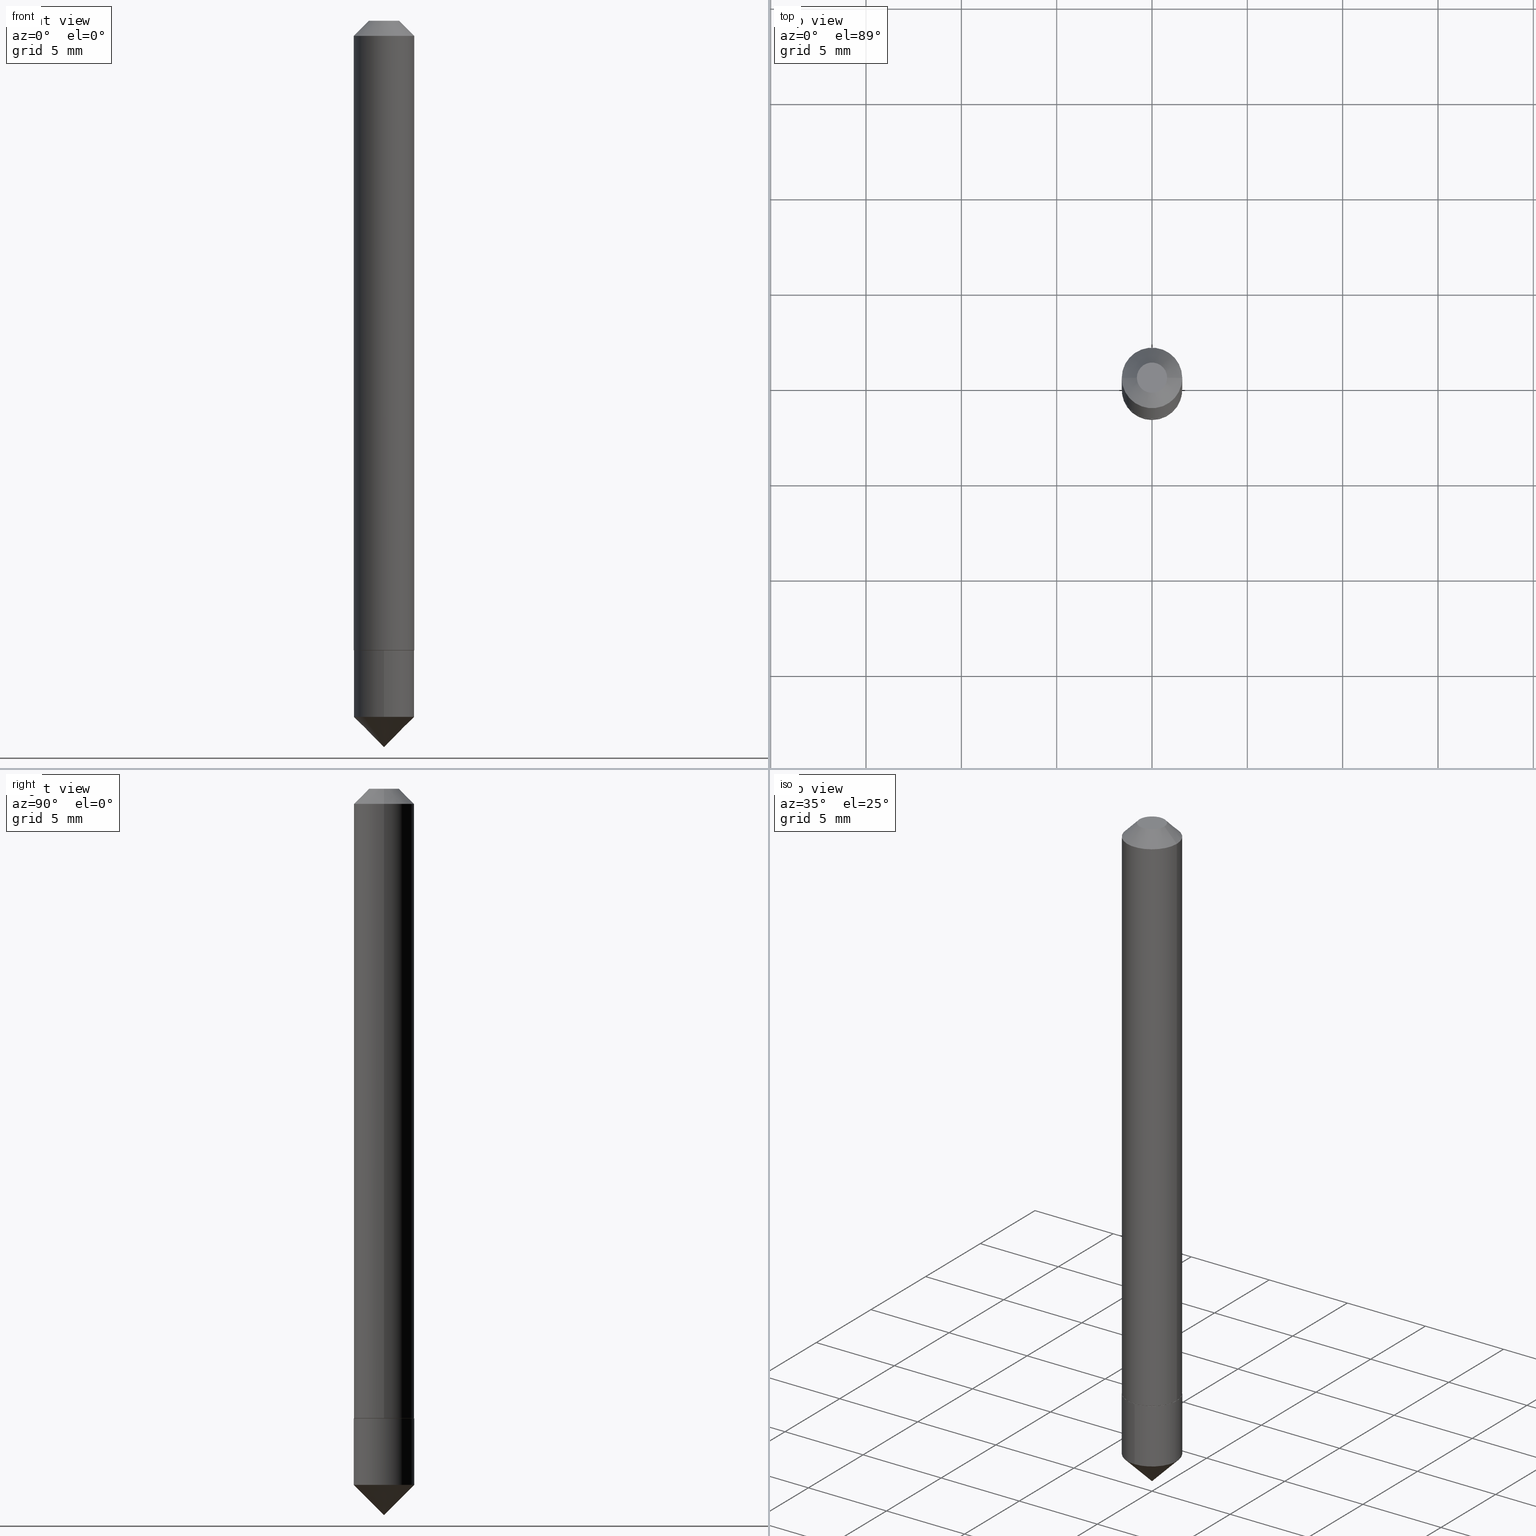
[diagram: canonical four-view strip — front | top / right | iso, engineering-drawing reading convention]
A machine part, canonical four-view strip (front | top / right | iso — engineering-drawing reading convention). The complete STEP part file that produces these views, byte-faithful:
ISO-10303-21;
HEADER;
FILE_DESCRIPTION (( 'STEP AP203' ),
    '1' );
FILE_NAME ('7023.STEP',
    '2024-04-23T14:54:24',
    ( '' ),
    ( '' ),
    'SwSTEP 2.0',
    'SolidWorks 2023',
    '' );
FILE_SCHEMA (( 'CONFIG_CONTROL_DESIGN' ));
ENDSEC;

DATA;
#1 = PERSON_AND_ORGANIZATION ( #212, #213 ) ;
#2 = VERTEX_POINT ( 'NONE', #248 ) ;
#3 = EDGE_CURVE ( 'NONE', #390, #132, #250, .T. ) ;
#4 = EDGE_LOOP ( 'NONE', ( #123, #31, #148, #210 ) ) ;
#5 = DATE_AND_TIME ( #197, #276 ) ;
#6 = CYLINDRICAL_SURFACE ( 'NONE', #120, 0.06250000000000012490 ) ;
#7 = VERTEX_POINT ( 'NONE', #96 ) ;
#8 = EDGE_CURVE ( 'NONE', #103, #370, #13, .T. ) ;
#9 = DIRECTION ( 'NONE',  ( -2.445468806185136597E-29, 3.491481338843145583E-15, 1.000000000000000000 ) ) ;
#10 = ORIENTED_EDGE ( 'NONE', *, *, #205, .F. ) ;
#11 = APPLICATION_CONTEXT ( 'configuration controlled 3d designs of mechanical parts and assemblies' ) ;
#12 = CARTESIAN_POINT ( 'NONE',  ( -0.06200000000000031875, -4.095740017150713065E-15, -1.299999999999999822 ) ) ;
#13 = CIRCLE ( 'NONE', #65, 0.06250000000000001388 ) ;
#14 = DIRECTION ( 'NONE',  ( 1.000000000000000000, -6.982962677686269866E-15, 0.000000000000000000 ) ) ;
#15 = CARTESIAN_POINT ( 'NONE',  ( 3.619678596598256141E-29, -5.306712015471122952E-15, -1.499999999999999778 ) ) ;
#16 = SECURITY_CLASSIFICATION_LEVEL ( 'unclassified' ) ;
#17 = CARTESIAN_POINT ( 'NONE',  ( 0.06250000000000022204, -4.973615167182060094E-15, -1.299499999999999877 ) ) ;
#18 = CIRCLE ( 'NONE', #146, 0.06250000000000002776 ) ;
#19 = EDGE_CURVE ( 'NONE', #187, #2, #368, .T. ) ;
#20 = CALENDAR_DATE ( 2024, 23, 4 ) ;
#21 = CARTESIAN_POINT ( 'NONE',  ( 0.06250000000000001388, -5.378899166995698233E-16, -0.03125000000000020817 ) ) ;
#22 = EDGE_CURVE ( 'NONE', #38, #150, #94, .T. ) ;
#23 = LINE ( 'NONE', #200, #297 ) ;
#24 = DIRECTION ( 'NONE',  ( -2.445468806185136597E-29, 3.491481338843145583E-15, 1.000000000000000000 ) ) ;
#25 = CIRCLE ( 'NONE', #244, 0.06200000000000031875 ) ;
#26 = LOCAL_TIME ( 10, 54, 24.00000000000000000, #51 ) ;
#27 = DIRECTION ( 'NONE',  ( -6.982962677686266711E-15, -1.000000000000000000, 3.552713678800484363E-15 ) ) ;
#28 = LENGTH_MEASURE_WITH_UNIT ( LENGTH_MEASURE( 0.02539999999999999897 ), #134 );
#29 = ORIENTED_EDGE ( 'NONE', *, *, #219, .T. ) ;
#30 = APPROVAL_DATE_TIME ( #46, #384 ) ;
#31 = ORIENTED_EDGE ( 'NONE', *, *, #22, .T. ) ;
#32 = AXIS2_PLACEMENT_3D ( 'NONE', #147, #361, #296 ) ;
#33 = ORIENTED_EDGE ( 'NONE', *, *, #359, .T. ) ;
#34 = DIRECTION ( 'NONE',  ( -0.7071067811865454633, 2.468850131082235367E-15, -0.7071067811865495711 ) ) ;
#35 = FACE_OUTER_BOUND ( 'NONE', #36, .T. ) ;
#36 = EDGE_LOOP ( 'NONE', ( #192, #161, #57 ) ) ;
#37 = ADVANCED_FACE ( 'NONE', ( #127 ), #369, .T. ) ;
#38 = VERTEX_POINT ( 'NONE', #12 ) ;
#39 = APPROVAL_DATE_TIME ( #5, #376 ) ;
#40 = CARTESIAN_POINT ( 'NONE',  ( 3.619678596598256141E-29, -5.306712015471122952E-15, -1.499999999999999778 ) ) ;
#41 = DIRECTION ( 'NONE',  ( 5.024295867788073434E-15, 0.7071067811865516806, 0.7071067811865433539 ) ) ;
#42 = EDGE_CURVE ( 'NONE', #187, #102, #218, .T. ) ;
#43 = ORIENTED_EDGE ( 'NONE', *, *, #257, .F. ) ;
#44 = CONICAL_SURFACE ( 'NONE', #286, 0.06250000000000022204, 0.7853981633974482790 ) ;
#45 = DIRECTION ( 'NONE',  ( 1.000000000000000000, -6.982962677686269866E-15, 0.000000000000000000 ) ) ;
#46 = DATE_AND_TIME ( #20, #66 ) ;
#47 = CARTESIAN_POINT ( 'NONE',  ( 0.06200000000000031875, -4.971869426512638590E-15, -1.299999999999999822 ) ) ;
#48 = APPLICATION_PROTOCOL_DEFINITION ( 'international standard', 'config_control_design', 1994, #280 ) ;
#49 = DIRECTION ( 'NONE',  ( -2.445468806185136877E-29, 3.491481338843145188E-15, 1.000000000000000000 ) ) ;
#50 = AXIS2_PLACEMENT_3D ( 'NONE', #374, #264, #202 ) ;
#51 = COORDINATED_UNIVERSAL_TIME_OFFSET ( 5, 0, .BEHIND. ) ;
#52 = DIRECTION ( 'NONE',  ( -2.445468806185136877E-29, 3.491481338843145188E-15, 1.000000000000000000 ) ) ;
#53 = DIRECTION ( 'NONE',  ( 1.000000000000000000, -6.982962677686265922E-15, 4.876176775795935232E-29 ) ) ;
#54 = DIRECTION ( 'NONE',  ( 1.000000000000000000, -6.982962677686265922E-15, 4.876176775795935793E-29 ) ) ;
#55 = DESIGN_CONTEXT ( 'detailed design', #11, 'design' ) ;
#56 = PRODUCT_DEFINITION ( 'UNKNOWN', '', #299, #55 ) ;
#57 = ORIENTED_EDGE ( 'NONE', *, *, #62, .F. ) ;
#58 = CONICAL_SURFACE ( 'NONE', #207, 0.06250000000000001388, 0.7853981633974453924 ) ;
#59 = APPROVAL_PERSON_ORGANIZATION ( #116, #376, #79 ) ;
#60 = PERSON_AND_ORGANIZATION ( #212, #213 ) ;
#61 = PERSON_AND_ORGANIZATION ( #212, #213 ) ;
#62 = EDGE_CURVE ( 'NONE', #2, #102, #364, .T. ) ;
#63 = ORIENTED_EDGE ( 'NONE', *, *, #162, .T. ) ;
#64 = FACE_OUTER_BOUND ( 'NONE', #165, .T. ) ;
#65 = AXIS2_PLACEMENT_3D ( 'NONE', #189, #160, #157 ) ;
#66 = LOCAL_TIME ( 10, 54, 24.00000000000000000, #381 ) ;
#67 = ORIENTED_EDGE ( 'NONE', *, *, #205, .T. ) ;
#68 = CARTESIAN_POINT ( 'NONE',  ( 7.642090019328602662E-31, -1.091087918388490267E-16, -0.03125000000000020817 ) ) ;
#69 = CARTESIAN_POINT ( 'NONE',  ( 7.642090019328602662E-31, -1.091087918388490267E-16, -0.03125000000000020817 ) ) ;
#70 = DIRECTION ( 'NONE',  ( -6.982962677686265922E-15, -1.000000000000000000, 4.370956789862820361E-15 ) ) ;
#71 = ORIENTED_EDGE ( 'NONE', *, *, #344, .T. ) ;
#72 = EDGE_LOOP ( 'NONE', ( #336, #317, #246, #283 ) ) ;
#73 = ORIENTED_EDGE ( 'NONE', *, *, #303, .T. ) ;
#74 = EDGE_CURVE ( 'NONE', #150, #38, #25, .T. ) ;
#75 = ORIENTED_EDGE ( 'NONE', *, *, #3, .F. ) ;
#76 = DIRECTION ( 'NONE',  ( -6.982962677686265922E-15, -1.000000000000000000, 4.370956789862820361E-15 ) ) ;
#77 = AXIS2_PLACEMENT_3D ( 'NONE', #69, #217, #243 ) ;
#78 = APPROVAL_PERSON_ORGANIZATION ( #61, #305, #334 ) ;
#79 = APPROVAL_ROLE ( '' ) ;
#80 = DIMENSIONAL_EXPONENTS ( 1.000000000000000000, 0.000000000000000000, 0.000000000000000000, 0.000000000000000000, 0.000000000000000000, 0.000000000000000000, 0.000000000000000000 ) ;
#81 = DIRECTION ( 'NONE',  ( -4.937700262164559086E-15, -0.7071067811865465735, 0.7071067811865484609 ) ) ;
#82 = DIRECTION ( 'NONE',  ( 1.000000000000000000, 0.000000000000000000, 0.000000000000000000 ) ) ;
#83 = CARTESIAN_POINT ( 'NONE',  ( 3.179109448040676791E-29, -4.538925740496088350E-15, -1.299999999999999822 ) ) ;
#84 = PERSON_AND_ORGANIZATION ( #212, #213 ) ;
#85 = DIRECTION ( 'NONE',  ( -6.982962677686265922E-15, -1.000000000000000000, 4.370956789862819572E-15 ) ) ;
#86 = DIRECTION ( 'NONE',  ( 1.000000000000000000, -6.982962677686267499E-15, 4.877000552086102004E-29 ) ) ;
#87 = EDGE_CURVE ( 'NONE', #132, #390, #220, .T. ) ;
#88 = CARTESIAN_POINT ( 'NONE',  ( 0.03125000000000000694, -3.761402395649651909E-16, -3.091620844447285598E-17 ) ) ;
#89 = DATE_AND_TIME ( #110, #26 ) ;
#90 = ORIENTED_EDGE ( 'NONE', *, *, #328, .F. ) ;
#91 = CC_DESIGN_PERSON_AND_ORGANIZATION_ASSIGNMENT ( #272, #173, ( #299 ) ) ;
#92 = CARTESIAN_POINT ( 'NONE',  ( 0.000000000000000000, 0.000000000000000000, 0.000000000000000000 ) ) ;
#93 = VECTOR ( 'NONE', #34, 39.37007874015748143 ) ;
#94 = CIRCLE ( 'NONE', #190, 0.06200000000000031875 ) ;
#95 = CONICAL_SURFACE ( 'NONE', #292, 39.37007874015766618, 0.7853981633974506105 ) ;
#96 = CARTESIAN_POINT ( 'NONE',  ( -0.06250000000000022204, -4.093090789976602653E-15, -1.299499999999999877 ) ) ;
#97 = DIRECTION ( 'NONE',  ( 6.982962677686265922E-15, 1.000000000000000000, -3.537808010314082757E-15 ) ) ;
#98 = ORIENTED_EDGE ( 'NONE', *, *, #315, .T. ) ;
#99 = DIRECTION ( 'NONE',  ( -6.982962677686265922E-15, -1.000000000000000000, 4.370956789862820361E-15 ) ) ;
#100 = SHAPE_DEFINITION_REPRESENTATION ( #158, #301 ) ;
#101 = VECTOR ( 'NONE', #49, 39.37007874015748143 ) ;
#102 = VERTEX_POINT ( 'NONE', #198 ) ;
#103 = VERTEX_POINT ( 'NONE', #327 ) ;
#104 = CYLINDRICAL_SURFACE ( 'NONE', #258, 0.06250000000000012490 ) ;
#105 = EDGE_CURVE ( 'NONE', #235, #390, #23, .T. ) ;
#106 = DATE_TIME_ROLE ( 'classification_date' ) ;
#107 = CARTESIAN_POINT ( 'NONE',  ( 3.177886713637585111E-29, -4.537179999826666847E-15, -1.299499999999999877 ) ) ;
#108 = AXIS2_PLACEMENT_3D ( 'NONE', #227, #290, #86 ) ;
#109 = LINE ( 'NONE', #171, #225 ) ;
#110 = CALENDAR_DATE ( 2024, 23, 4 ) ;
#111 = DIRECTION ( 'NONE',  ( 2.438088387897960049E-29, -3.491481338843145188E-15, -1.000000000000000000 ) ) ;
#112 = CYLINDRICAL_SURFACE ( 'NONE', #237, 0.06250000000000001388 ) ;
#113 = CONICAL_SURFACE ( 'NONE', #181, 0.06250000000000001388, 0.7853981633974453924 ) ;
#114 = LINE ( 'NONE', #214, #131 ) ;
#115 = DIRECTION ( 'NONE',  ( -2.413119064398837894E-29, 3.537808010314082757E-15, 1.000000000000000000 ) ) ;
#116 = PERSON_AND_ORGANIZATION ( #212, #213 ) ;
#117 = ADVANCED_FACE ( 'NONE', ( #133 ), #104, .T. ) ;
#118 = EDGE_LOOP ( 'NONE', ( #331, #306 ) ) ;
#119 = AXIS2_PLACEMENT_3D ( 'NONE', #107, #224, #45 ) ;
#120 = AXIS2_PLACEMENT_3D ( 'NONE', #92, #387, #268 ) ;
#121 = EDGE_LOOP ( 'NONE', ( #152, #281 ) ) ;
#122 = DIRECTION ( 'NONE',  ( 1.000000000000000000, -6.982962677686269866E-15, 0.000000000000000000 ) ) ;
#123 = ORIENTED_EDGE ( 'NONE', *, *, #162, .F. ) ;
#124 = DIRECTION ( 'NONE',  ( 1.000000000000000000, -6.982962677686267499E-15, 4.877000552086102004E-29 ) ) ;
#125 = LOCAL_TIME ( 10, 54, 24.00000000000000000, #255 ) ;
#126 = ORIENTED_EDGE ( 'NONE', *, *, #74, .T. ) ;
#127 = FACE_OUTER_BOUND ( 'NONE', #241, .T. ) ;
#128 = ADVANCED_FACE ( 'NONE', ( #322 ), #58, .T. ) ;
#129 = ORIENTED_EDGE ( 'NONE', *, *, #87, .F. ) ;
#130 = MANIFOLD_SOLID_BREP ( 'Body-Move/Copy2[1]', #259 ) ;
#131 = VECTOR ( 'NONE', #234, 39.37007874015748143 ) ;
#132 = VERTEX_POINT ( 'NONE', #320 ) ;
#133 = FACE_OUTER_BOUND ( 'NONE', #347, .T. ) ;
#134 =( LENGTH_UNIT ( ) NAMED_UNIT ( * ) SI_UNIT ( $, .METRE. ) );
#135 = DIRECTION ( 'NONE',  ( 1.000000000000000000, -6.982962677686265133E-15, 0.000000000000000000 ) ) ;
#136 = CARTESIAN_POINT ( 'NONE',  ( 0.000000000000000000, 0.000000000000000000, 0.000000000000000000 ) ) ;
#137 = PRODUCT_RELATED_PRODUCT_CATEGORY ( 'detail', '', ( #335 ) ) ;
#138 = LINE ( 'NONE', #21, #269 ) ;
#139 = CC_DESIGN_SECURITY_CLASSIFICATION ( #378, ( #299 ) ) ;
#140 = PERSON_AND_ORGANIZATION_ROLE ( 'creator' ) ;
#141 = DIRECTION ( 'NONE',  ( -2.413119064398837894E-29, 3.537808010314082757E-15, 1.000000000000000000 ) ) ;
#142 = CARTESIAN_POINT ( 'NONE',  ( 0.000000000000000000, 0.000000000000000000, 0.000000000000000000 ) ) ;
#143 = AXIS2_PLACEMENT_3D ( 'NONE', #309, #211, #54 ) ;
#144 = FACE_OUTER_BOUND ( 'NONE', #316, .T. ) ;
#145 = AXIS2_PLACEMENT_3D ( 'NONE', #284, #314, #99 ) ;
#146 = AXIS2_PLACEMENT_3D ( 'NONE', #242, #240, #245 ) ;
#147 = CARTESIAN_POINT ( 'NONE',  ( -9.134295431383695749E-28, 1.340372925910664003E-13, 37.87007874015748143 ) ) ;
#148 = ORIENTED_EDGE ( 'NONE', *, *, #328, .T. ) ;
#149 = DATE_AND_TIME ( #321, #350 ) ;
#150 = VERTEX_POINT ( 'NONE', #47 ) ;
#151 = APPROVAL_STATUS ( 'not_yet_approved' ) ;
#152 = ORIENTED_EDGE ( 'NONE', *, *, #8, .T. ) ;
#153 = CIRCLE ( 'NONE', #372, 0.06250000000000001388 ) ;
#154 = DIRECTION ( 'NONE',  ( 2.445468806185136597E-29, -3.491481338843145583E-15, -1.000000000000000000 ) ) ;
#155 = ADVANCED_FACE ( 'NONE', ( #254 ), #291, .T. ) ;
#156 = FACE_OUTER_BOUND ( 'NONE', #72, .T. ) ;
#157 = DIRECTION ( 'NONE',  ( -6.982962677686265922E-15, -1.000000000000000000, 4.370956789862820361E-15 ) ) ;
#158 = PRODUCT_DEFINITION_SHAPE ( 'NONE', 'NONE',  #56 ) ;
#159 = AXIS2_PLACEMENT_3D ( 'NONE', #330, #270, #176 ) ;
#160 = DIRECTION ( 'NONE',  ( -2.413119064398837894E-29, 3.537808010314082757E-15, 1.000000000000000000 ) ) ;
#161 = ORIENTED_EDGE ( 'NONE', *, *, #42, .T. ) ;
#162 = EDGE_CURVE ( 'NONE', #38, #7, #109, .T. ) ;
#163 = ORIENTED_EDGE ( 'NONE', *, *, #8, .F. ) ;
#164 = VECTOR ( 'NONE', #337, 39.37007874015748854 ) ;
#165 = EDGE_LOOP ( 'NONE', ( #73, #67, #75, #342 ) ) ;
#166 = CARTESIAN_POINT ( 'NONE',  ( 3.179109448040676791E-29, -4.538925740496088350E-15, -1.299999999999999822 ) ) ;
#167 = ADVANCED_FACE ( 'NONE', ( #230 ), #232, .F. ) ;
#168 = APPROVAL_STATUS ( 'not_yet_approved' ) ;
#169 = DIRECTION ( 'NONE',  ( -0.7071067811865474617, 7.493145998870352582E-15, 0.7071067811865474617 ) ) ;
#170 = MECHANICAL_CONTEXT ( 'NONE', #280, 'mechanical' ) ;
#171 = CARTESIAN_POINT ( 'NONE',  ( -0.06250000000000022204, -4.093090789976602653E-15, -1.299499999999999877 ) ) ;
#172 = AXIS2_PLACEMENT_3D ( 'NONE', #186, #358, #97 ) ;
#173 = PERSON_AND_ORGANIZATION_ROLE ( 'creator' ) ;
#174 = DIRECTION ( 'NONE',  ( 2.445468806185136597E-29, -3.491481338843145583E-15, -1.000000000000000000 ) ) ;
#175 = CARTESIAN_POINT ( 'NONE',  ( -0.06250000000000001388, 3.273263755165427167E-16, -0.03125000000000020817 ) ) ;
#176 = DIRECTION ( 'NONE',  ( 1.000000000000000000, -6.982962677686269866E-15, 0.000000000000000000 ) ) ;
#177 = ORIENTED_EDGE ( 'NONE', *, *, #332, .T. ) ;
#178 = VECTOR ( 'NONE', #329, 39.37007874015748143 ) ;
#179 = PERSON_AND_ORGANIZATION ( #212, #213 ) ;
#180 = ORIENTED_EDGE ( 'NONE', *, *, #359, .F. ) ;
#181 = AXIS2_PLACEMENT_3D ( 'NONE', #68, #154, #182 ) ;
#182 = DIRECTION ( 'NONE',  ( -1.000000000000000000, 6.982962677686265922E-15, 0.000000000000000000 ) ) ;
#183 = ADVANCED_FACE ( 'NONE', ( #266 ), #112, .T. ) ;
#184 = CC_DESIGN_PERSON_AND_ORGANIZATION_ASSIGNMENT ( #289, #379, ( #378 ) ) ;
#185 = ORIENTED_EDGE ( 'NONE', *, *, #19, .T. ) ;
#186 = CARTESIAN_POINT ( 'NONE',  ( 3.179109448040676791E-29, -4.538925740496088350E-15, -1.299999999999999822 ) ) ;
#187 = VERTEX_POINT ( 'NONE', #15 ) ;
#188 = LINE ( 'NONE', #311, #164 ) ;
#189 = CARTESIAN_POINT ( 'NONE',  ( 3.179109448040676791E-29, -4.538925740496088350E-15, -1.299999999999999822 ) ) ;
#190 = AXIS2_PLACEMENT_3D ( 'NONE', #345, #9, #221 ) ;
#191 = ORIENTED_EDGE ( 'NONE', *, *, #263, .T. ) ;
#192 = ORIENTED_EDGE ( 'NONE', *, *, #19, .F. ) ;
#193 = ORIENTED_EDGE ( 'NONE', *, *, #105, .T. ) ;
#194 = AXIS2_PLACEMENT_3D ( 'NONE', #385, #383, #85 ) ;
#195 = CC_DESIGN_APPROVAL ( #384, ( #56 ) ) ;
#196 = CARTESIAN_POINT ( 'NONE',  ( -0.06250000000000012490, 4.440892098500635036E-16, -3.074334431409321719E-30 ) ) ;
#197 = CALENDAR_DATE ( 2024, 23, 4 ) ;
#198 = CARTESIAN_POINT ( 'NONE',  ( -4.364351673553566637E-16, -0.06250000000000505151, -1.437500000000000000 ) ) ;
#199 = UNCERTAINTY_MEASURE_WITH_UNIT (LENGTH_MEASURE( 1.000000000000000082E-05 ), #228, 'distance_accuracy_value', 'NONE');
#200 = CARTESIAN_POINT ( 'NONE',  ( 0.06250000000000012490, -4.364351673553925076E-16, 3.047610484872465476E-30 ) ) ;
#201 = APPROVAL_DATE_TIME ( #389, #305 ) ;
#202 = DIRECTION ( 'NONE',  ( 1.000000000000000000, -6.982962677686265922E-15, 0.000000000000000000 ) ) ;
#203 = AXIS2_PLACEMENT_3D ( 'NONE', #367, #279, #122 ) ;
#204 = DIRECTION ( 'NONE',  ( 0.7071067811865454633, -7.319954787623248157E-15, -0.7071067811865495711 ) ) ;
#205 = EDGE_CURVE ( 'NONE', #7, #132, #357, .T. ) ;
#206 = PLANE ( 'NONE',  #143 ) ;
#207 = AXIS2_PLACEMENT_3D ( 'NONE', #256, #174, #353 ) ;
#208 = AXIS2_PLACEMENT_3D ( 'NONE', #136, #323, #82 ) ;
#209 =( NAMED_UNIT ( * ) SI_UNIT ( $, .STERADIAN. ) SOLID_ANGLE_UNIT ( ) );
#210 = ORIENTED_EDGE ( 'NONE', *, *, #315, .F. ) ;
#211 = DIRECTION ( 'NONE',  ( -2.438088387897960049E-29, 3.491481338843145188E-15, 1.000000000000000000 ) ) ;
#212 = PERSON ( 'UNSPECIFIED', 'UNSPECIFIED', 'UNSPECIFIED', ('UNSPECIFIED'), ('UNSPECIFIED'), ('UNSPECIFIED') ) ;
#213 = ORGANIZATION ( 'UNSPECIFIED', 'UNSPECIFIED', '' ) ;
#214 = CARTESIAN_POINT ( 'NONE',  ( -4.364351673553599671E-16, -0.06250000000000455191, -1.299999999999999600 ) ) ;
#215 = ORIENTED_EDGE ( 'NONE', *, *, #263, .F. ) ;
#216 = LINE ( 'NONE', #175, #93 ) ;
#217 = DIRECTION ( 'NONE',  ( -2.445468806185136597E-29, 3.491481338843145583E-15, 1.000000000000000000 ) ) ;
#218 = LINE ( 'NONE', #40, #349 ) ;
#219 = EDGE_CURVE ( 'NONE', #2, #370, #293, .T. ) ;
#220 = CIRCLE ( 'NONE', #50, 0.06250000000000001388 ) ;
#221 = DIRECTION ( 'NONE',  ( 1.000000000000000000, -6.982962677686265133E-15, 0.000000000000000000 ) ) ;
#222 = VERTEX_POINT ( 'NONE', #288 ) ;
#223 = EDGE_CURVE ( 'NONE', #312, #222, #386, .T. ) ;
#224 = DIRECTION ( 'NONE',  ( -2.445468806185136597E-29, 3.491481338843145583E-15, 1.000000000000000000 ) ) ;
#225 = VECTOR ( 'NONE', #169, 39.37007874015748854 ) ;
#226 = CC_DESIGN_APPROVAL ( #305, ( #299 ) ) ;
#227 = CARTESIAN_POINT ( 'NONE',  ( 7.560462335648095015E-46, -1.079433648516691094E-31, -3.091620844447493906E-17 ) ) ;
#228 =( CONVERSION_BASED_UNIT ( 'INCH', #28 ) LENGTH_UNIT ( ) NAMED_UNIT ( #80 ) );
#229 = CARTESIAN_POINT ( 'NONE',  ( 4.440892098500944664E-16, 0.06249999999999547584, -1.300000000000000044 ) ) ;
#230 = FACE_OUTER_BOUND ( 'NONE', #249, .T. ) ;
#231 = CC_DESIGN_DATE_AND_TIME_ASSIGNMENT ( #89, #355, ( #56 ) ) ;
#232 = PLANE ( 'NONE',  #326 ) ;
#233 =( GEOMETRIC_REPRESENTATION_CONTEXT ( 3 ) GLOBAL_UNCERTAINTY_ASSIGNED_CONTEXT ( ( #199 ) ) GLOBAL_UNIT_ASSIGNED_CONTEXT ( ( #228, #236, #209 ) ) REPRESENTATION_CONTEXT ( 'NONE', 'WORKASPACE' ) );
#234 = DIRECTION ( 'NONE',  ( -2.413119064398838175E-29, 3.537808010314082757E-15, 1.000000000000000000 ) ) ;
#235 = VERTEX_POINT ( 'NONE', #17 ) ;
#236 =( NAMED_UNIT ( * ) PLANE_ANGLE_UNIT ( ) SI_UNIT ( $, .RADIAN. ) );
#237 = AXIS2_PLACEMENT_3D ( 'NONE', #166, #348, #76 ) ;
#238 = ORIENTED_EDGE ( 'NONE', *, *, #223, .T. ) ;
#239 = CC_DESIGN_PERSON_AND_ORGANIZATION_ASSIGNMENT ( #60, #375, ( #299 ) ) ;
#240 = DIRECTION ( 'NONE',  ( -2.413119064398837894E-29, 3.537808010314082757E-15, 1.000000000000000000 ) ) ;
#241 = EDGE_LOOP ( 'NONE', ( #177, #29, #163, #180 ) ) ;
#242 = CARTESIAN_POINT ( 'NONE',  ( 3.510913319395518105E-29, -5.025374341914276554E-15, -1.437500000000000222 ) ) ;
#243 = DIRECTION ( 'NONE',  ( 1.000000000000000000, -6.982962677686265922E-15, 0.000000000000000000 ) ) ;
#244 = AXIS2_PLACEMENT_3D ( 'NONE', #83, #377, #135 ) ;
#245 = DIRECTION ( 'NONE',  ( -6.982962677686265922E-15, -1.000000000000000000, 4.370956789862819572E-15 ) ) ;
#246 = ORIENTED_EDGE ( 'NONE', *, *, #3, .T. ) ;
#247 = EDGE_CURVE ( 'NONE', #312, #390, #138, .T. ) ;
#248 = CARTESIAN_POINT ( 'NONE',  ( 4.440892098500978191E-16, 0.06249999999999499706, -1.437500000000000444 ) ) ;
#249 = EDGE_LOOP ( 'NONE', ( #191, #238 ) ) ;
#250 = CIRCLE ( 'NONE', #77, 0.06250000000000001388 ) ;
#251 = CONICAL_SURFACE ( 'NONE', #32, 39.37007874015766618, 0.7853981633974506105 ) ;
#252 = ORIENTED_EDGE ( 'NONE', *, *, #42, .F. ) ;
#253 = ADVANCED_FACE ( 'NONE', ( #287 ), #44, .T. ) ;
#254 = FACE_OUTER_BOUND ( 'NONE', #4, .T. ) ;
#255 = COORDINATED_UNIVERSAL_TIME_OFFSET ( 5, 0, .BEHIND. ) ;
#256 = CARTESIAN_POINT ( 'NONE',  ( 7.642090019328602662E-31, -1.091087918388490267E-16, -0.03125000000000020817 ) ) ;
#257 = EDGE_CURVE ( 'NONE', #370, #103, #153, .T. ) ;
#258 = AXIS2_PLACEMENT_3D ( 'NONE', #142, #294, #53 ) ;
#259 = CLOSED_SHELL ( 'NONE', ( #37, #295, #346, #183, #275 ) ) ;
#260 = CC_DESIGN_APPROVAL ( #376, ( #378 ) ) ;
#261 = CARTESIAN_POINT ( 'NONE',  ( 3.177886713637585111E-29, -4.537179999826666847E-15, -1.299499999999999877 ) ) ;
#262 = CALENDAR_DATE ( 2024, 23, 4 ) ;
#263 = EDGE_CURVE ( 'NONE', #222, #312, #313, .T. ) ;
#264 = DIRECTION ( 'NONE',  ( -2.445468806185136597E-29, 3.491481338843145583E-15, 1.000000000000000000 ) ) ;
#265 = MANIFOLD_SOLID_BREP ( 'Body-Move/Copy2[2]', #285 ) ;
#266 = FACE_OUTER_BOUND ( 'NONE', #302, .T. ) ;
#267 = VECTOR ( 'NONE', #41, 39.37007874015748143 ) ;
#268 = DIRECTION ( 'NONE',  ( 1.000000000000000000, -6.982962677686265922E-15, 4.876176775795935232E-29 ) ) ;
#269 = VECTOR ( 'NONE', #204, 39.37007874015748143 ) ;
#270 = DIRECTION ( 'NONE',  ( -2.445468806185136597E-29, 3.491481338843145583E-15, 1.000000000000000000 ) ) ;
#271 = ORIENTED_EDGE ( 'NONE', *, *, #87, .T. ) ;
#272 = PERSON_AND_ORGANIZATION ( #212, #213 ) ;
#273 = ORIENTED_EDGE ( 'NONE', *, *, #303, .F. ) ;
#274 = COORDINATED_UNIVERSAL_TIME_OFFSET ( 5, 0, .BEHIND. ) ;
#275 = ADVANCED_FACE ( 'NONE', ( #298 ), #341, .F. ) ;
#276 = LOCAL_TIME ( 10, 54, 24.00000000000000000, #274 ) ;
#277 = CC_DESIGN_PERSON_AND_ORGANIZATION_ASSIGNMENT ( #1, #351, ( #335 ) ) ;
#278 = CARTESIAN_POINT ( 'NONE',  ( 0.06250000000000001388, -5.455439591942407701E-16, -0.03125000000000020817 ) ) ;
#279 = DIRECTION ( 'NONE',  ( -2.445468806185136597E-29, 3.491481338843145583E-15, 1.000000000000000000 ) ) ;
#280 = APPLICATION_CONTEXT ( 'configuration controlled 3d designs of mechanical parts and assemblies' ) ;
#281 = ORIENTED_EDGE ( 'NONE', *, *, #257, .T. ) ;
#282 = CARTESIAN_POINT ( 'NONE',  ( 3.704525464771749264E-29, -5.186262669646686851E-15, -1.499999999999999778 ) ) ;
#283 = ORIENTED_EDGE ( 'NONE', *, *, #344, .F. ) ;
#284 = CARTESIAN_POINT ( 'NONE',  ( 3.179109448040676791E-29, -4.538925740496088350E-15, -1.299999999999999822 ) ) ;
#285 = CLOSED_SHELL ( 'NONE', ( #382, #352, #253, #362, #155, #117, #128, #167 ) ) ;
#286 = AXIS2_PLACEMENT_3D ( 'NONE', #261, #380, #14 ) ;
#287 = FACE_OUTER_BOUND ( 'NONE', #373, .T. ) ;
#288 = CARTESIAN_POINT ( 'NONE',  ( -0.03125000000000000694, 2.727719795971192510E-16, -3.091620844447665237E-17 ) ) ;
#289 = PERSON_AND_ORGANIZATION ( #212, #213 ) ;
#290 = DIRECTION ( 'NONE',  ( -2.445468806185136597E-29, 3.491481338843145583E-15, 1.000000000000000000 ) ) ;
#291 = CONICAL_SURFACE ( 'NONE', #119, 0.06250000000000022204, 0.7853981633974482790 ) ;
#292 = AXIS2_PLACEMENT_3D ( 'NONE', #388, #115, #27 ) ;
#293 = LINE ( 'NONE', #229, #178 ) ;
#294 = DIRECTION ( 'NONE',  ( -2.445468806185136597E-29, 3.491481338843145583E-15, 1.000000000000000000 ) ) ;
#295 = ADVANCED_FACE ( 'NONE', ( #144 ), #95, .T. ) ;
#296 = DIRECTION ( 'NONE',  ( -6.982962677686266711E-15, -1.000000000000000000, 3.552713678800484363E-15 ) ) ;
#297 = VECTOR ( 'NONE', #52, 39.37007874015748143 ) ;
#298 = FACE_OUTER_BOUND ( 'NONE', #121, .T. ) ;
#299 = PRODUCT_DEFINITION_FORMATION_WITH_SPECIFIED_SOURCE ( 'ANY', '', #335, .NOT_KNOWN. ) ;
#300 = COORDINATED_UNIVERSAL_TIME_OFFSET ( 5, 0, .BEHIND. ) ;
#301 = ADVANCED_BREP_SHAPE_REPRESENTATION ( '7023', ( #130, #265, #208 ), #233 ) ;
#302 = EDGE_LOOP ( 'NONE', ( #343, #308, #33, #43 ) ) ;
#303 = EDGE_CURVE ( 'NONE', #235, #7, #338, .T. ) ;
#304 = APPROVAL_STATUS ( 'not_yet_approved' ) ;
#305 = APPROVAL ( #168, 'UNSPECIFIED' ) ;
#306 = ORIENTED_EDGE ( 'NONE', *, *, #22, .F. ) ;
#307 = CARTESIAN_POINT ( 'NONE',  ( 7.560462335648095015E-46, -1.079433648516691094E-31, -3.091620844447493906E-17 ) ) ;
#308 = ORIENTED_EDGE ( 'NONE', *, *, #62, .T. ) ;
#309 = CARTESIAN_POINT ( 'NONE',  ( 7.178998214997203495E-29, 1.189142633316055456E-15, -1.299999999999999822 ) ) ;
#310 = ORIENTED_EDGE ( 'NONE', *, *, #247, .F. ) ;
#311 = CARTESIAN_POINT ( 'NONE',  ( 0.06250000000000022204, -4.973615167182060094E-15, -1.299499999999999877 ) ) ;
#312 = VERTEX_POINT ( 'NONE', #88 ) ;
#313 = CIRCLE ( 'NONE', #318, 0.03125000000000000694 ) ;
#314 = DIRECTION ( 'NONE',  ( -2.413119064398837894E-29, 3.537808010314082757E-15, 1.000000000000000000 ) ) ;
#315 = EDGE_CURVE ( 'NONE', #7, #235, #319, .T. ) ;
#316 = EDGE_LOOP ( 'NONE', ( #252, #185, #365 ) ) ;
#317 = ORIENTED_EDGE ( 'NONE', *, *, #247, .T. ) ;
#318 = AXIS2_PLACEMENT_3D ( 'NONE', #307, #24, #124 ) ;
#319 = CIRCLE ( 'NONE', #159, 0.06250000000000022204 ) ;
#320 = CARTESIAN_POINT ( 'NONE',  ( -0.06250000000000001388, -1.879055185982692991E-15, -0.03125000000000020817 ) ) ;
#321 = CALENDAR_DATE ( 2024, 23, 4 ) ;
#322 = FACE_OUTER_BOUND ( 'NONE', #340, .T. ) ;
#323 = DIRECTION ( 'NONE',  ( 0.000000000000000000, 0.000000000000000000, 1.000000000000000000 ) ) ;
#324 = CARTESIAN_POINT ( 'NONE',  ( 3.780231167824047508E-46, -5.397168242583455470E-32, -1.545810422223746953E-17 ) ) ;
#325 = APPLICATION_PROTOCOL_DEFINITION ( 'international standard', 'config_control_design', 1994, #11 ) ;
#326 = AXIS2_PLACEMENT_3D ( 'NONE', #324, #111, #356 ) ;
#327 = CARTESIAN_POINT ( 'NONE',  ( -4.364351673553599671E-16, -0.06250000000000455191, -1.299999999999999600 ) ) ;
#328 = EDGE_CURVE ( 'NONE', #150, #235, #188, .T. ) ;
#329 = DIRECTION ( 'NONE',  ( -2.413119064398838175E-29, 3.537808010314082757E-15, 1.000000000000000000 ) ) ;
#330 = CARTESIAN_POINT ( 'NONE',  ( 3.177886713637585111E-29, -4.537179999826666847E-15, -1.299499999999999877 ) ) ;
#331 = ORIENTED_EDGE ( 'NONE', *, *, #74, .F. ) ;
#332 = EDGE_CURVE ( 'NONE', #102, #2, #18, .T. ) ;
#333 = APPROVAL_ROLE ( '' ) ;
#334 = APPROVAL_ROLE ( '' ) ;
#335 = PRODUCT ( '7023', '7023', '', ( #170 ) ) ;
#336 = ORIENTED_EDGE ( 'NONE', *, *, #223, .F. ) ;
#337 = DIRECTION ( 'NONE',  ( 0.7071067811865474617, -2.468850131082256666E-15, 0.7071067811865474617 ) ) ;
#338 = CIRCLE ( 'NONE', #203, 0.06250000000000022204 ) ;
#339 = CARTESIAN_POINT ( 'NONE',  ( 4.440892098500978191E-16, 0.06249999999999547584, -1.300000000000000044 ) ) ;
#340 = EDGE_LOOP ( 'NONE', ( #310, #215, #71, #271 ) ) ;
#341 = PLANE ( 'NONE',  #172 ) ;
#342 = ORIENTED_EDGE ( 'NONE', *, *, #105, .F. ) ;
#343 = ORIENTED_EDGE ( 'NONE', *, *, #219, .F. ) ;
#344 = EDGE_CURVE ( 'NONE', #222, #132, #216, .T. ) ;
#345 = CARTESIAN_POINT ( 'NONE',  ( 3.179109448040676791E-29, -4.538925740496088350E-15, -1.299999999999999822 ) ) ;
#346 = ADVANCED_FACE ( 'NONE', ( #35 ), #251, .T. ) ;
#347 = EDGE_LOOP ( 'NONE', ( #10, #98, #193, #129 ) ) ;
#348 = DIRECTION ( 'NONE',  ( -2.413119064398837894E-29, 3.537808010314082757E-15, 1.000000000000000000 ) ) ;
#349 = VECTOR ( 'NONE', #81, 39.37007874015748143 ) ;
#350 = LOCAL_TIME ( 10, 54, 24.00000000000000000, #300 ) ;
#351 = PERSON_AND_ORGANIZATION_ROLE ( 'design_owner' ) ;
#352 = ADVANCED_FACE ( 'NONE', ( #64 ), #6, .T. ) ;
#353 = DIRECTION ( 'NONE',  ( -1.000000000000000000, 6.982962677686265922E-15, 0.000000000000000000 ) ) ;
#354 = CARTESIAN_POINT ( 'NONE',  ( 3.179109448040676791E-29, -4.538925740496088350E-15, -1.299999999999999822 ) ) ;
#355 = DATE_TIME_ROLE ( 'creation_date' ) ;
#356 = DIRECTION ( 'NONE',  ( -1.000000000000000000, 6.982962677686265922E-15, -4.876176775795935793E-29 ) ) ;
#357 = LINE ( 'NONE', #196, #101 ) ;
#358 = DIRECTION ( 'NONE',  ( 2.413119064398837614E-29, -3.537808010314082757E-15, -1.000000000000000000 ) ) ;
#359 = EDGE_CURVE ( 'NONE', #102, #103, #114, .T. ) ;
#360 = CC_DESIGN_DATE_AND_TIME_ASSIGNMENT ( #149, #106, ( #378 ) ) ;
#361 = DIRECTION ( 'NONE',  ( -2.413119064398837894E-29, 3.537808010314082757E-15, 1.000000000000000000 ) ) ;
#362 = ADVANCED_FACE ( 'NONE', ( #363 ), #206, .F. ) ;
#363 = FACE_OUTER_BOUND ( 'NONE', #118, .T. ) ;
#364 = CIRCLE ( 'NONE', #194, 0.06250000000000002776 ) ;
#365 = ORIENTED_EDGE ( 'NONE', *, *, #332, .F. ) ;
#366 = APPROVAL_PERSON_ORGANIZATION ( #179, #384, #333 ) ;
#367 = CARTESIAN_POINT ( 'NONE',  ( 3.177886713637585111E-29, -4.537179999826666847E-15, -1.299499999999999877 ) ) ;
#368 = LINE ( 'NONE', #282, #267 ) ;
#369 = CYLINDRICAL_SURFACE ( 'NONE', #145, 0.06250000000000001388 ) ;
#370 = VERTEX_POINT ( 'NONE', #339 ) ;
#371 = CC_DESIGN_PERSON_AND_ORGANIZATION_ASSIGNMENT ( #84, #140, ( #56 ) ) ;
#372 = AXIS2_PLACEMENT_3D ( 'NONE', #354, #141, #70 ) ;
#373 = EDGE_LOOP ( 'NONE', ( #126, #63, #273, #90 ) ) ;
#374 = CARTESIAN_POINT ( 'NONE',  ( 7.642090019328602662E-31, -1.091087918388490267E-16, -0.03125000000000020817 ) ) ;
#375 = PERSON_AND_ORGANIZATION_ROLE ( 'design_supplier' ) ;
#376 = APPROVAL ( #151, 'UNSPECIFIED' ) ;
#377 = DIRECTION ( 'NONE',  ( -2.445468806185136597E-29, 3.491481338843145583E-15, 1.000000000000000000 ) ) ;
#378 = SECURITY_CLASSIFICATION ( '', '', #16 ) ;
#379 = PERSON_AND_ORGANIZATION_ROLE ( 'classification_officer' ) ;
#380 = DIRECTION ( 'NONE',  ( -2.445468806185136597E-29, 3.491481338843145583E-15, 1.000000000000000000 ) ) ;
#381 = COORDINATED_UNIVERSAL_TIME_OFFSET ( 5, 0, .BEHIND. ) ;
#382 = ADVANCED_FACE ( 'NONE', ( #156 ), #113, .T. ) ;
#383 = DIRECTION ( 'NONE',  ( -2.413119064398837894E-29, 3.537808010314082757E-15, 1.000000000000000000 ) ) ;
#384 = APPROVAL ( #304, 'UNSPECIFIED' ) ;
#385 = CARTESIAN_POINT ( 'NONE',  ( 3.510913319395518105E-29, -5.025374341914276554E-15, -1.437500000000000222 ) ) ;
#386 = CIRCLE ( 'NONE', #108, 0.03125000000000000694 ) ;
#387 = DIRECTION ( 'NONE',  ( -2.445468806185136597E-29, 3.491481338843145583E-15, 1.000000000000000000 ) ) ;
#388 = CARTESIAN_POINT ( 'NONE',  ( -9.134295431383695749E-28, 1.340372925910664003E-13, 37.87007874015748143 ) ) ;
#389 = DATE_AND_TIME ( #262, #125 ) ;
#390 = VERTEX_POINT ( 'NONE', #278 ) ;
ENDSEC;
END-ISO-10303-21;
